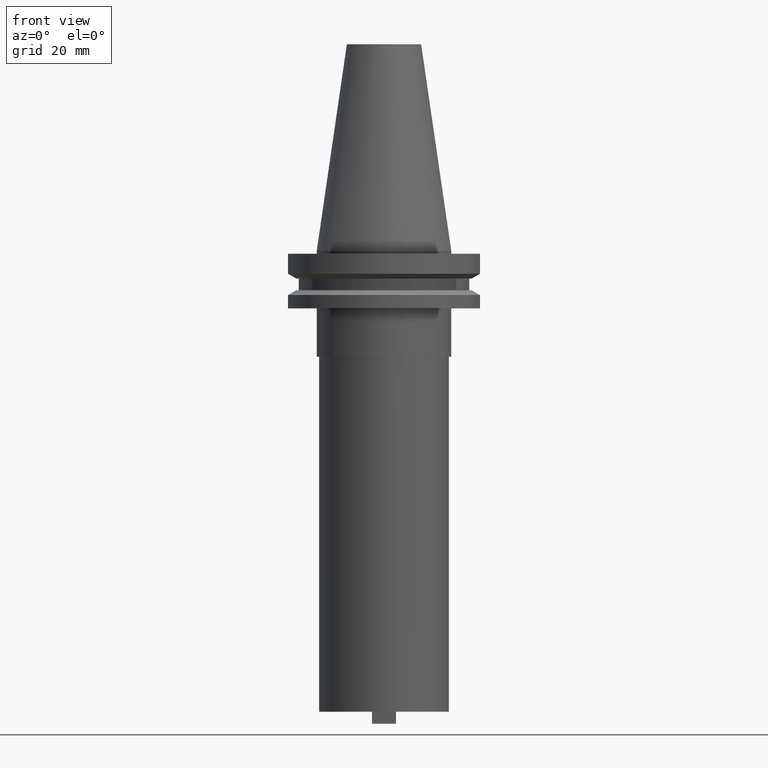
[diagram: clean part render]
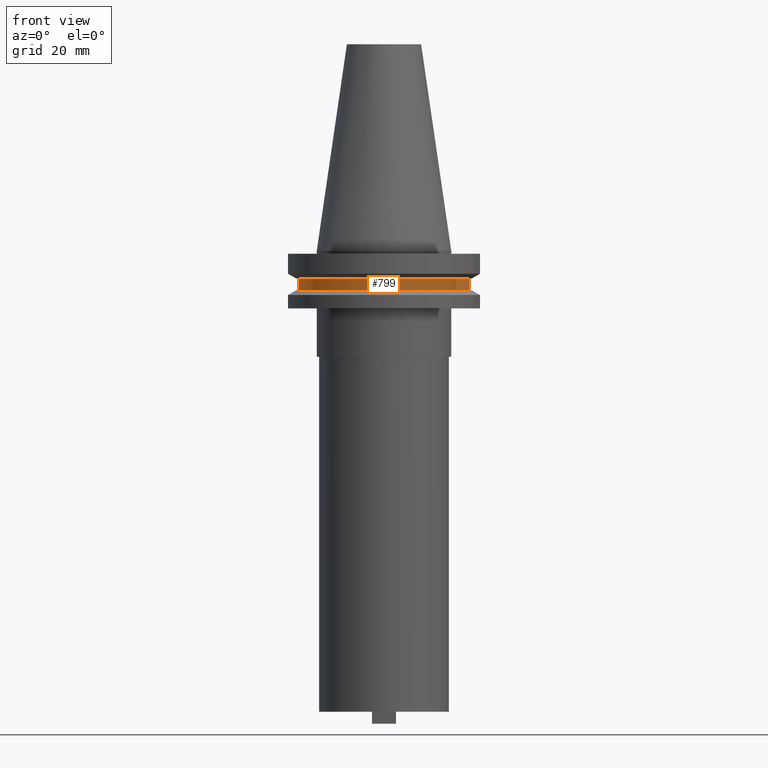
[diagram: same view with one face highlighted and labeled with its STEP entity id]
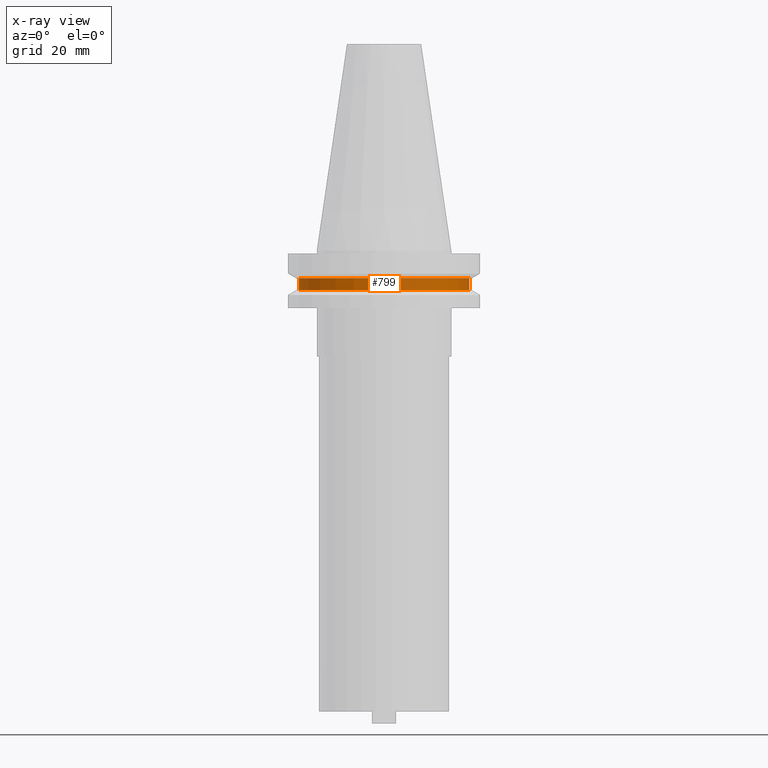
[diagram: x-ray of the same camera — body ghosted, the highlighted face saturated]
A machine part, front view. The second image highlights one B-rep face of the part: STEP entity #799.
The next image is the same camera in x-ray: the body ghosted, the highlighted face saturated — about 0% of this face is hidden behind the body in this view.
In plain terms, the highlighted cylindrical surface (partial cylindrical patch) has radius 28.18 mm, axis along (-0, -0, 1).
Its self-contained STEP definition (entity closure, byte-faithful):
#44 = EDGE_LOOP ( 'NONE', ( #849, #788, #968, #531 ) ) ;
#118 = DIRECTION ( 'NONE',  ( 1.000000000000000000, 0.000000000000000000, 0.000000000000000000 ) ) ;
#139 = LINE ( 'NONE', #145, #241 ) ;
#145 = CARTESIAN_POINT ( 'NONE',  ( -28.17999999999999972, 3.451054679997241634E-15, 68.25000000000000000 ) ) ;
#171 = EDGE_CURVE ( 'NONE', #441, #540, #139, .T. ) ;
#202 = CARTESIAN_POINT ( 'NONE',  ( 0.000000000000000000, 0.000000000000000000, 68.25000000000000000 ) ) ;
#234 = DIRECTION ( 'NONE',  ( -0.000000000000000000, -0.000000000000000000, 1.000000000000000000 ) ) ;
#241 = VECTOR ( 'NONE', #234, 1000.000000000000000 ) ;
#307 = CARTESIAN_POINT ( 'NONE',  ( 0.000000000000000000, 0.000000000000000000, -13.05499999999999794 ) ) ;
#316 = CIRCLE ( 'NONE', #437, 28.17999999999999972 ) ;
#369 = LINE ( 'NONE', #703, #443 ) ;
#372 = EDGE_CURVE ( 'NONE', #540, #596, #872, .T. ) ;
#404 = CARTESIAN_POINT ( 'NONE',  ( -28.17999999999999972, 3.451054679997241634E-15, -13.05499999999999794 ) ) ;
#418 = EDGE_CURVE ( 'NONE', #441, #744, #316, .T. ) ;
#437 = AXIS2_PLACEMENT_3D ( 'NONE', #307, #485, #499 ) ;
#441 = VERTEX_POINT ( 'NONE', #404 ) ;
#443 = VECTOR ( 'NONE', #873, 1000.000000000000000 ) ;
#482 = CYLINDRICAL_SURFACE ( 'NONE', #550, 28.17999999999999972 ) ;
#485 = DIRECTION ( 'NONE',  ( -0.000000000000000000, -0.000000000000000000, 1.000000000000000000 ) ) ;
#499 = DIRECTION ( 'NONE',  ( 1.000000000000000000, 0.000000000000000000, 0.000000000000000000 ) ) ;
#521 = CARTESIAN_POINT ( 'NONE',  ( 0.000000000000000000, 0.000000000000000000, -9.204999999999991189 ) ) ;
#531 = ORIENTED_EDGE ( 'NONE', *, *, #372, .F. ) ;
#540 = VERTEX_POINT ( 'NONE', #613 ) ;
#550 = AXIS2_PLACEMENT_3D ( 'NONE', #202, #626, #118 ) ;
#594 = DIRECTION ( 'NONE',  ( 1.000000000000000000, 0.000000000000000000, 0.000000000000000000 ) ) ;
#596 = VERTEX_POINT ( 'NONE', #1077 ) ;
#613 = CARTESIAN_POINT ( 'NONE',  ( -28.17999999999999972, 3.451054679997241634E-15, -9.204999999999991189 ) ) ;
#626 = DIRECTION ( 'NONE',  ( -0.000000000000000000, -0.000000000000000000, 1.000000000000000000 ) ) ;
#703 = CARTESIAN_POINT ( 'NONE',  ( 28.17999999999999972, 0.000000000000000000, 68.25000000000000000 ) ) ;
#709 = CARTESIAN_POINT ( 'NONE',  ( 28.17999999999999972, 0.000000000000000000, -13.05499999999999794 ) ) ;
#732 = EDGE_CURVE ( 'NONE', #744, #596, #369, .T. ) ;
#744 = VERTEX_POINT ( 'NONE', #709 ) ;
#784 = FACE_OUTER_BOUND ( 'NONE', #44, .T. ) ;
#788 = ORIENTED_EDGE ( 'NONE', *, *, #418, .T. ) ;
#799 = ADVANCED_FACE ( 'NONE', ( #784 ), #482, .T. ) ;
#847 = DIRECTION ( 'NONE',  ( -0.000000000000000000, -0.000000000000000000, 1.000000000000000000 ) ) ;
#849 = ORIENTED_EDGE ( 'NONE', *, *, #171, .F. ) ;
#855 = AXIS2_PLACEMENT_3D ( 'NONE', #521, #847, #594 ) ;
#872 = CIRCLE ( 'NONE', #855, 28.17999999999999972 ) ;
#873 = DIRECTION ( 'NONE',  ( -0.000000000000000000, -0.000000000000000000, 1.000000000000000000 ) ) ;
#968 = ORIENTED_EDGE ( 'NONE', *, *, #732, .T. ) ;
#1077 = CARTESIAN_POINT ( 'NONE',  ( 28.17999999999999972, 0.000000000000000000, -9.204999999999991189 ) ) ;